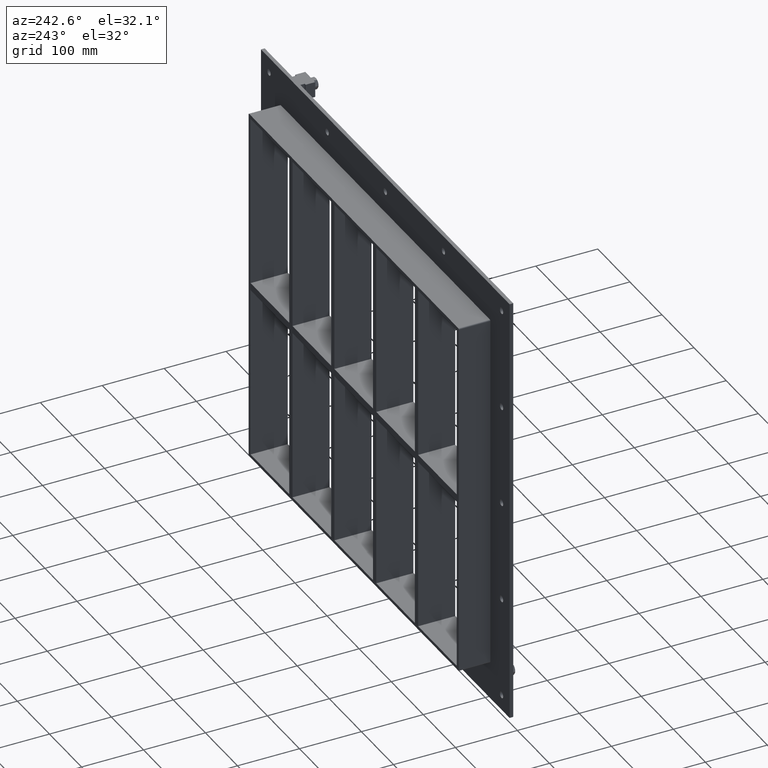
[diagram: clean part render]
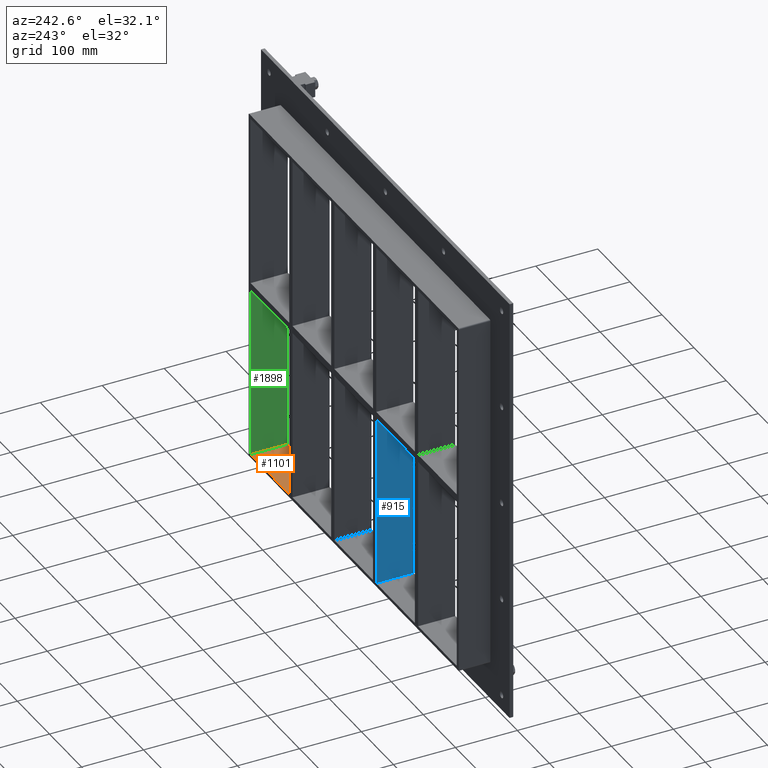
[diagram: same view with three faces highlighted in distinct colors, each labeled with its STEP entity id]
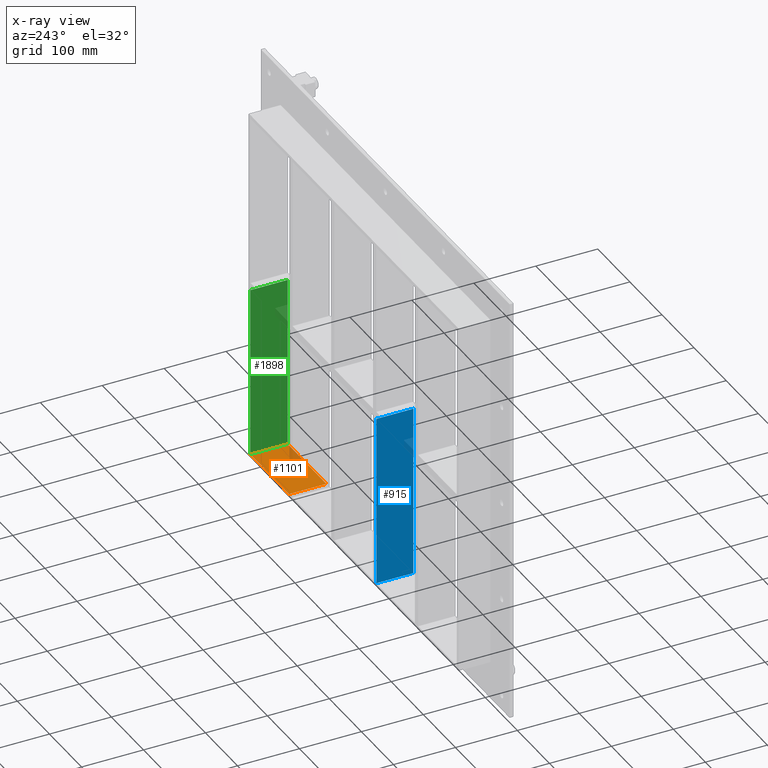
[diagram: x-ray of the same camera — body ghosted, the three highlighted faces saturated]
A machine part, auxiliary view with three faces highlighted in distinct colors.
The next image is the same camera in x-ray (body ghosted, the three faces saturated) — at least one of them is partly hidden behind the body in this view.
Their STEP definitions:

[orange] entity #1101 — the highlighted planar face has unit normal (0, 0, -1).
#651=CARTESIAN_POINT('',(200.74999999999278,-3.0,-283.99999999998175));
#652=VERTEX_POINT('',#651);
#659=CARTESIAN_POINT('',(200.74999999999278,57.0,-283.99999999998181));
#660=VERTEX_POINT('',#659);
#661=CARTESIAN_POINT('',(200.74999999999278,57.000000000000007,-284.00000000000006));
#662=DIRECTION('',(0.0,-1.0,0.0));
#663=VECTOR('',#662,60.000000000000007);
#664=LINE('',#661,#663);
#665=EDGE_CURVE('',#660,#652,#664,.T.);
#1071=CARTESIAN_POINT('',(321.25000000000011,0.0,-284.00000000000006));
#1072=DIRECTION('',(0.0,0.0,-1.0));
#1073=DIRECTION('',(-1.0,0.0,0.0));
#1074=AXIS2_PLACEMENT_3D('',#1071,#1072,#1073);
#1075=PLANE('',#1074);
#1076=ORIENTED_EDGE('',*,*,#665,.T.);
#1077=CARTESIAN_POINT('',(321.25000000000011,-3.0,-284.00000000000006));
#1078=VERTEX_POINT('',#1077);
#1079=CARTESIAN_POINT('',(321.25000000000011,-3.0,-284.00000000000006));
#1080=DIRECTION('',(-1.0,0.0,0.0));
#1081=VECTOR('',#1080,120.50000000000733);
#1082=LINE('',#1079,#1081);
#1083=EDGE_CURVE('',#1078,#652,#1082,.T.);
#1084=ORIENTED_EDGE('',*,*,#1083,.F.);
#1085=CARTESIAN_POINT('',(321.25000000000011,57.0,-284.00000000000006));
#1086=VERTEX_POINT('',#1085);
#1087=CARTESIAN_POINT('',(321.25000000000011,56.999999999999993,-284.00000000000006));
#1088=DIRECTION('',(0.0,-1.0,0.0));
#1089=VECTOR('',#1088,59.999999999999993);
#1090=LINE('',#1087,#1089);
#1091=EDGE_CURVE('',#1086,#1078,#1090,.T.);
#1092=ORIENTED_EDGE('',*,*,#1091,.F.);
#1093=CARTESIAN_POINT('',(200.74999999999278,57.0,-284.00000000000006));
#1094=DIRECTION('',(1.0,0.0,0.0));
#1095=VECTOR('',#1094,120.50000000000733);
#1096=LINE('',#1093,#1095);
#1097=EDGE_CURVE('',#660,#1086,#1096,.T.);
#1098=ORIENTED_EDGE('',*,*,#1097,.F.);
#1099=EDGE_LOOP('',(#1076,#1084,#1092,#1098));
#1100=FACE_OUTER_BOUND('',#1099,.T.);
#1101=ADVANCED_FACE('',(#1100),#1075,.F.);

[blue] entity #915 — the highlighted planar face has unit normal (-1, 0, 0).
#876=CARTESIAN_POINT('',(-70.250000000000171,-3.0,-284.00000000000006));
#877=DIRECTION('',(-1.0,0.0,0.0));
#878=DIRECTION('',(0.0,0.0,1.0));
#879=AXIS2_PLACEMENT_3D('',#876,#877,#878);
#880=PLANE('',#879);
#881=CARTESIAN_POINT('',(-70.250000000000213,57.0,-6.000000000011347));
#882=VERTEX_POINT('',#881);
#883=CARTESIAN_POINT('',(-70.250000000000213,-3.0,-6.000000000011347));
#884=VERTEX_POINT('',#883);
#885=CARTESIAN_POINT('',(-70.250000000000242,57.0,-6.000000000011347));
#886=DIRECTION('',(0.0,-1.0,0.0));
#887=VECTOR('',#886,60.0);
#888=LINE('',#885,#887);
#889=EDGE_CURVE('',#882,#884,#888,.T.);
#890=ORIENTED_EDGE('',*,*,#889,.F.);
#891=CARTESIAN_POINT('',(-70.250000000000171,57.0,-284.00000000000006));
#892=VERTEX_POINT('',#891);
#893=CARTESIAN_POINT('',(-70.250000000000171,57.0,-284.00000000000006));
#894=DIRECTION('',(0.0,0.0,1.0));
#895=VECTOR('',#894,277.99999999998869);
#896=LINE('',#893,#895);
#897=EDGE_CURVE('',#892,#882,#896,.T.);
#898=ORIENTED_EDGE('',*,*,#897,.F.);
#899=CARTESIAN_POINT('',(-70.250000000000171,-3.0,-284.00000000000006));
#900=VERTEX_POINT('',#899);
#901=CARTESIAN_POINT('',(-70.250000000000185,-3.0,-284.00000000000006));
#902=DIRECTION('',(0.0,1.0,0.0));
#903=VECTOR('',#902,60.000000000000007);
#904=LINE('',#901,#903);
#905=EDGE_CURVE('',#900,#892,#904,.T.);
#906=ORIENTED_EDGE('',*,*,#905,.F.);
#907=CARTESIAN_POINT('',(-70.250000000000171,-3.0,-284.00000000000006));
#908=DIRECTION('',(0.0,0.0,1.0));
#909=VECTOR('',#908,277.99999999998869);
#910=LINE('',#907,#909);
#911=EDGE_CURVE('',#900,#884,#910,.T.);
#912=ORIENTED_EDGE('',*,*,#911,.T.);
#913=EDGE_LOOP('',(#890,#898,#906,#912));
#914=FACE_OUTER_BOUND('',#913,.T.);
#915=ADVANCED_FACE('',(#914),#880,.T.);

[green] entity #1898 — the highlighted planar face has unit normal (1, 0, 0).
#1077=CARTESIAN_POINT('',(321.25000000000011,-3.0,-284.00000000000006));
#1078=VERTEX_POINT('',#1077);
#1085=CARTESIAN_POINT('',(321.25000000000011,57.0,-284.00000000000006));
#1086=VERTEX_POINT('',#1085);
#1087=CARTESIAN_POINT('',(321.25000000000011,56.999999999999993,-284.00000000000006));
#1088=DIRECTION('',(0.0,-1.0,0.0));
#1089=VECTOR('',#1088,59.999999999999993);
#1090=LINE('',#1087,#1089);
#1091=EDGE_CURVE('',#1086,#1078,#1090,.T.);
#1300=CARTESIAN_POINT('',(321.25,-3.0,-6.000000000010957));
#1301=VERTEX_POINT('',#1300);
#1308=CARTESIAN_POINT('',(321.25000000000011,-3.0,-6.000000000010971));
#1309=DIRECTION('',(0.0,0.0,-1.0));
#1310=VECTOR('',#1309,277.99999999998903);
#1311=LINE('',#1308,#1310);
#1312=EDGE_CURVE('',#1301,#1078,#1311,.T.);
#1392=CARTESIAN_POINT('',(321.24999999999994,57.0,-6.000000000010957));
#1393=VERTEX_POINT('',#1392);
#1400=CARTESIAN_POINT('',(321.25000000000011,-3.0,-6.000000000010957));
#1401=DIRECTION('',(0.0,1.0,0.0));
#1402=VECTOR('',#1401,60.000000000000007);
#1403=LINE('',#1400,#1402);
#1404=EDGE_CURVE('',#1301,#1393,#1403,.T.);
#1509=CARTESIAN_POINT('',(321.25000000000011,57.0,-284.0));
#1510=DIRECTION('',(0.0,0.0,1.0));
#1511=VECTOR('',#1510,277.99999999998903);
#1512=LINE('',#1509,#1511);
#1513=EDGE_CURVE('',#1086,#1393,#1512,.T.);
#1887=CARTESIAN_POINT('',(321.25000000000011,0.0,284.0));
#1888=DIRECTION('',(1.0,0.0,0.0));
#1889=DIRECTION('',(0.0,0.0,-1.0));
#1890=AXIS2_PLACEMENT_3D('',#1887,#1888,#1889);
#1891=PLANE('',#1890);
#1892=ORIENTED_EDGE('',*,*,#1404,.T.);
#1893=ORIENTED_EDGE('',*,*,#1513,.F.);
#1894=ORIENTED_EDGE('',*,*,#1091,.T.);
#1895=ORIENTED_EDGE('',*,*,#1312,.F.);
#1896=EDGE_LOOP('',(#1892,#1893,#1894,#1895));
#1897=FACE_OUTER_BOUND('',#1896,.T.);
#1898=ADVANCED_FACE('',(#1897),#1891,.F.);